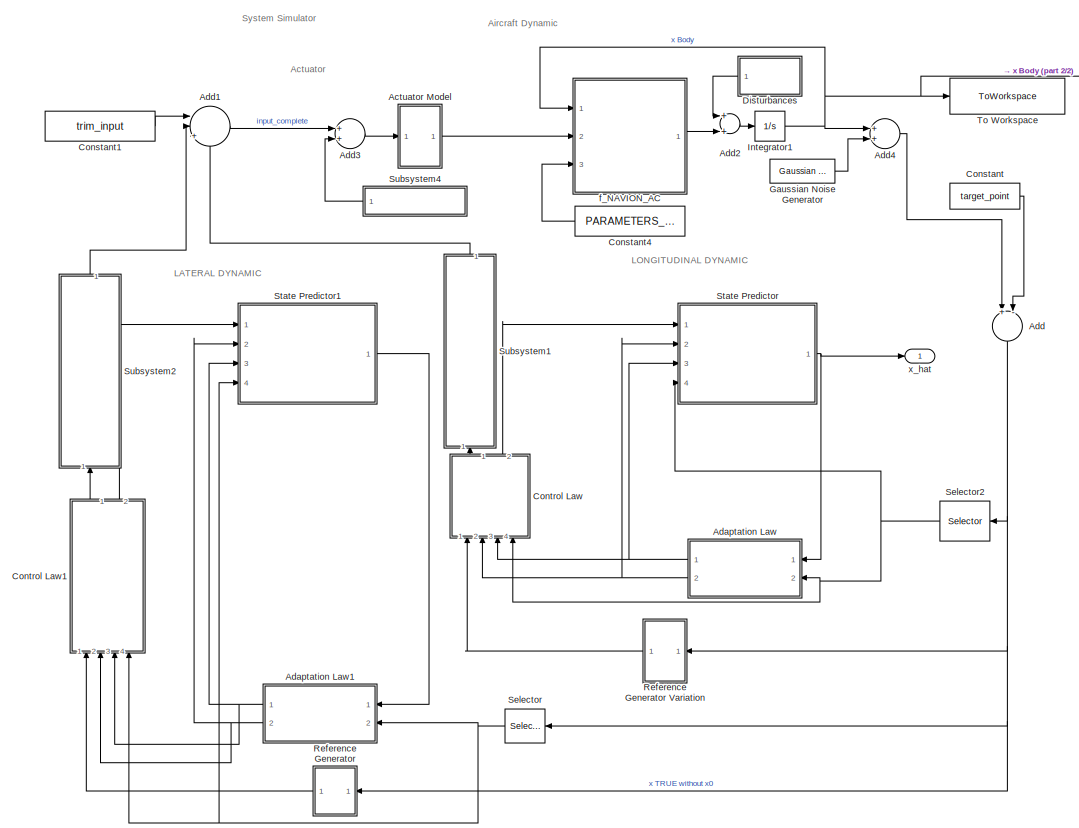
[diagram: root canvas - part 1/2, center side, full height]
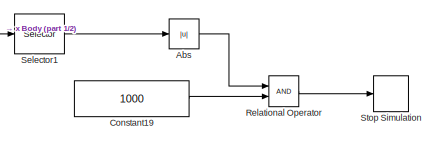
[diagram: root canvas - part 2/2, top right region]
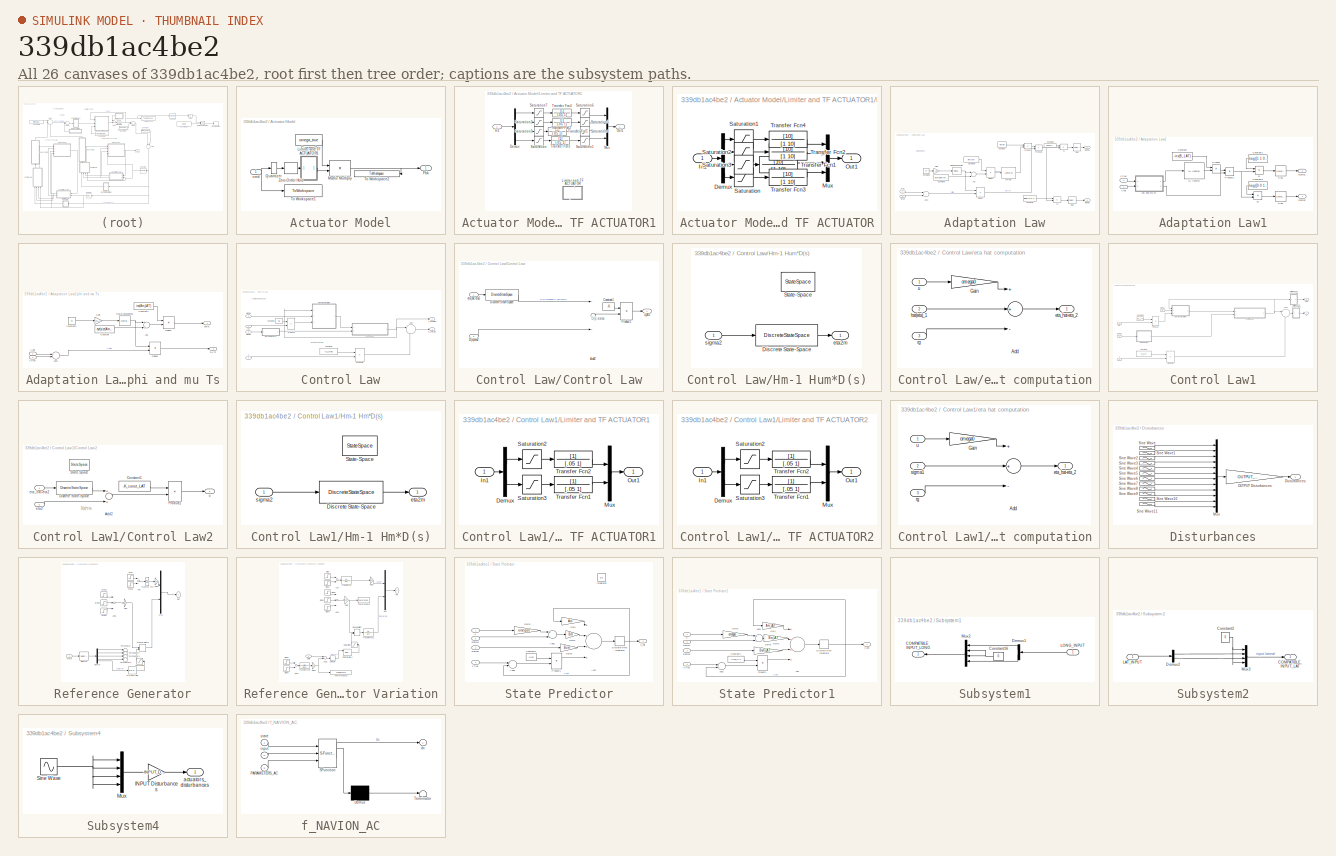
[diagram: thumbnail index - all 26 canvases of the model, root first then tree order]
MODEL slx_339db1ac4be2
KIND model
CONFIG AbsTol = auto
CONFIG EnableMultiTasking = off
CONFIG FixedStep = Ts/10
CONFIG MaxStep = auto
CONFIG MinStep = auto
CONFIG RelTol = 1e-3
CONFIG SampleTimeConstraint = Unconstrained
CONFIG Solver = ode4
CONFIG SolverName = ode4
CONFIG StartTime = 0.0
CONFIG StopTime = 200
BLOCK [Abs] Abs
  SaturateOnIntegerOverflow = off
BLOCK [SubSystem] Actuator Model
  Ports = [1, 1]
  RequestExecContextInheritance = off
  Variant = off
BLOCK [Constant] Actuator Model/Constant2
  Value = omega_true
BLOCK [Outport] Actuator Model/Fbk
  IconDisplay = Port number
BLOCK [SubSystem] Actuator Model/Limiter and TF ACTUATOR1
  Ports = [1, 1]
  RequestExecContextInheritance = off
  Variant = off
BLOCK [Demux] Actuator Model/Limiter and TF ACTUATOR1/Demux
  DisplayOption = bar
  Ports = [1, 4]
BLOCK [Inport] Actuator Model/Limiter and TF ACTUATOR1/In1
  IconDisplay = Port number
BLOCK [SubSystem] Actuator Model/Limiter and TF ACTUATOR1/Limiter and TF ACTUATOR
  Ports = [1, 1]
  RequestExecContextInheritance = off
  Variant = off
BLOCK [Demux] Actuator Model/Limiter and TF ACTUATOR1/Limiter and TF ACTUATOR/Demux
  DisplayOption = bar
  Ports = [1, 4]
BLOCK [Inport] Actuator Model/Limiter and TF ACTUATOR1/Limiter and TF ACTUATOR/In1
  IconDisplay = Port number
BLOCK [Mux] Actuator Model/Limiter and TF ACTUATOR1/Limiter and TF ACTUATOR/Mux
  DisplayOption = bar
  Ports = [4, 1]
BLOCK [Outport] Actuator Model/Limiter and TF ACTUATOR1/Limiter and TF ACTUATOR/Out1
  IconDisplay = Port number
BLOCK [Saturate] Actuator Model/Limiter and TF ACTUATOR1/Limiter and TF ACTUATOR/Saturation
  InputPortMap = u0
  LowerLimit = 0
  Ports = [1, 1]
  UpperLimit = 1
BLOCK [Saturate] Actuator Model/Limiter and TF ACTUATOR1/Limiter and TF ACTUATOR/Saturation1
  InputPortMap = u0
  LowerLimit = -0.3
  Ports = [1, 1]
  UpperLimit = 0.3
BLOCK [Saturate] Actuator Model/Limiter and TF ACTUATOR1/Limiter and TF ACTUATOR/Saturation2
  InputPortMap = u0
  LowerLimit = -0.3
  Ports = [1, 1]
  UpperLimit = 0.3
BLOCK [Saturate] Actuator Model/Limiter and TF ACTUATOR1/Limiter and TF ACTUATOR/Saturation3
  InputPortMap = u0
  LowerLimit = -0.3
  Ports = [1, 1]
  UpperLimit = 0.3
BLOCK [TransferFcn] Actuator Model/Limiter and TF ACTUATOR1/Limiter and TF ACTUATOR/Transfer Fcn1
  Denominator = [1 10]
  Numerator = [10]
BLOCK [TransferFcn] Actuator Model/Limiter and TF ACTUATOR1/Limiter and TF ACTUATOR/Transfer Fcn2
  Denominator = [1 10]
  Numerator = [10]
BLOCK [TransferFcn] Actuator Model/Limiter and TF ACTUATOR1/Limiter and TF ACTUATOR/Transfer Fcn3
  Denominator = [1 10]
  Numerator = [10]
BLOCK [TransferFcn] Actuator Model/Limiter and TF ACTUATOR1/Limiter and TF ACTUATOR/Transfer Fcn4
  Denominator = [1 10]
  Numerator = [10]
BLOCK [Mux] Actuator Model/Limiter and TF ACTUATOR1/Mux
  DisplayOption = bar
  Ports = [4, 1]
BLOCK [Outport] Actuator Model/Limiter and TF ACTUATOR1/Out1
  IconDisplay = Port number
BLOCK [Saturate] Actuator Model/Limiter and TF ACTUATOR1/Saturation
  InputPortMap = u0
  LowerLimit = 0
  Ports = [1, 1]
  UpperLimit = 1
BLOCK [Saturate] Actuator Model/Limiter and TF ACTUATOR1/Saturation1
  InputPortMap = u0
  LowerLimit = 0
  Ports = [1, 1]
  UpperLimit = 1
BLOCK [Saturate] Actuator Model/Limiter and TF ACTUATOR1/Saturation2
  InputPortMap = u0
  LowerLimit = -0.3
  Ports = [1, 1]
  UpperLimit = 0.3
BLOCK [Saturate] Actuator Model/Limiter and TF ACTUATOR1/Saturation3
  InputPortMap = u0
  LowerLimit = -0.3
  Ports = [1, 1]
  UpperLimit = 0.3
BLOCK [Saturate] Actuator Model/Limiter and TF ACTUATOR1/Saturation4
  InputPortMap = u0
  LowerLimit = -0.3
  Ports = [1, 1]
  UpperLimit = 0.3
BLOCK [Saturate] Actuator Model/Limiter and TF ACTUATOR1/Saturation5
  InputPortMap = u0
  LowerLimit = -0.3
  Ports = [1, 1]
  UpperLimit = 0.3
BLOCK [Saturate] Actuator Model/Limiter and TF ACTUATOR1/Saturation6
  InputPortMap = u0
  LowerLimit = -20/60
  Ports = [1, 1]
  UpperLimit = 20/60
BLOCK [Saturate] Actuator Model/Limiter and TF ACTUATOR1/Saturation7
  InputPortMap = u0
  LowerLimit = -20/60
  Ports = [1, 1]
  UpperLimit = 20/60
BLOCK [TransferFcn] Actuator Model/Limiter and TF ACTUATOR1/Transfer Fcn1
  Denominator = [.05 1]
BLOCK [TransferFcn] Actuator Model/Limiter and TF ACTUATOR1/Transfer Fcn2
  Denominator = [.05 1]
BLOCK [TransferFcn] Actuator Model/Limiter and TF ACTUATOR1/Transfer Fcn3
  Denominator = [.05 1]
BLOCK [TransferFcn] Actuator Model/Limiter and TF ACTUATOR1/Transfer Fcn4
  Denominator = [.05 1]
BLOCK [Product] Actuator Model/Matrix Multiply
  InputSameDT = off
  Multiplication = Matrix(*)
  OutDataTypeStr = Inherit: Inherit via internal rule
  Ports = [2, 1]
  RndMeth = Floor
  SaturateOnIntegerOverflow = off
BLOCK [Quantizer] Actuator Model/Quantizer
  QuantizationInterval = 1/(2^16-1)
BLOCK [ToWorkspace] Actuator Model/To Workspace1
  FixptAsFi = on
  MaxDataPoints = inf
  Ports = [1]
  SampleTime = -1
  Save2DSignal = 3-D array (concatenate along third dimension)
  SaveFormat = Timeseries
  VariableName = INPUT_TO_ACTUATOR
BLOCK [ToWorkspace] Actuator Model/To Workspace2
  FixptAsFi = on
  MaxDataPoints = inf
  Ports = [1]
  SampleTime = -1
  Save2DSignal = 3-D array (concatenate along third dimension)
  SaveFormat = Timeseries
  VariableName = ACTUATOR_TRUE
BLOCK [ZeroOrderHold] Actuator Model/Zero-Order Hold
  SampleTime = Ts_delay
BLOCK [Inport] Actuator Model/cmd
  IconDisplay = Port number
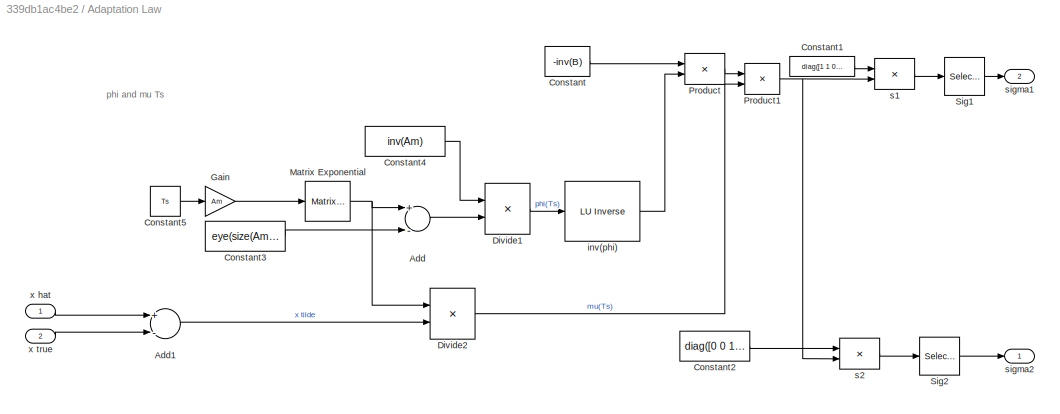
BLOCK [SubSystem] Adaptation Law
  Ports = [2, 2]
  RequestExecContextInheritance = off
  Variant = off
BLOCK [Sum] Adaptation Law/Add
  InputSameDT = off
  Inputs = +-
  OutDataTypeStr = Inherit: Inherit via internal rule
  Ports = [2, 1]
  SaturateOnIntegerOverflow = off
BLOCK [Sum] Adaptation Law/Add1
  InputSameDT = off
  Inputs = +-
  OutDataTypeStr = Inherit: Inherit via internal rule
  Ports = [2, 1]
  SaturateOnIntegerOverflow = off
BLOCK [Constant] Adaptation Law/Constant
  Value = -inv(B)
BLOCK [Constant] Adaptation Law/Constant1
  Value = diag([1 1 0 0 ])
BLOCK [Constant] Adaptation Law/Constant2
  Value = diag([0 0 1 1])
BLOCK [Constant] Adaptation Law/Constant3
  Value = eye(size(Am))
BLOCK [Constant] Adaptation Law/Constant4
  Value = inv(Am)
BLOCK [Constant] Adaptation Law/Constant5
  Value = Ts
BLOCK [Product] Adaptation Law/Divide1
  InputSameDT = off
  Inputs = **
  Multiplication = Matrix(*)
  OutDataTypeStr = Inherit: Inherit via internal rule
  Ports = [2, 1]
  RndMeth = Floor
  SaturateOnIntegerOverflow = off
BLOCK [Product] Adaptation Law/Divide2
  InputSameDT = off
  Inputs = **
  Multiplication = Matrix(*)
  OutDataTypeStr = Inherit: Inherit via internal rule
  Ports = [2, 1]
  RndMeth = Floor
  SaturateOnIntegerOverflow = off
BLOCK [Gain] Adaptation Law/Gain
  Gain = Am
  OutDataTypeStr = Inherit: Inherit via internal rule
  ParamDataTypeStr = Inherit: Inherit via internal rule
  SaturateOnIntegerOverflow = off
BLOCK [Reference] Adaptation Law/Matrix Exponential  REF=dspmtrx3/Matrix
Exponential
  Ports = [1, 1]
  SourceBlock = dspmtrx3/Matrix\nExponential
  SourceProductBaseCode = DS
  SourceProductName = DSP System Toolbox
  SourceType = Matrix Exponential
BLOCK [Product] Adaptation Law/Product
  InputSameDT = off
  Multiplication = Matrix(*)
  OutDataTypeStr = Inherit: Inherit via internal rule
  Ports = [2, 1]
  RndMeth = Floor
  SaturateOnIntegerOverflow = off
BLOCK [Product] Adaptation Law/Product1
  InputSameDT = off
  Multiplication = Matrix(*)
  OutDataTypeStr = Inherit: Inherit via internal rule
  Ports = [2, 1]
  RndMeth = Floor
  SaturateOnIntegerOverflow = off
BLOCK [Selector] Adaptation Law/Sig1
  IndexOptions = Index vector (dialog)
  Indices = [1 2]
  InputPortWidth = 4
  OutputSizes = 1
  Ports = [1, 1]
BLOCK [Selector] Adaptation Law/Sig2
  IndexOptions = Index vector (dialog)
  Indices = [3 4]
  InputPortWidth = 4
  OutputSizes = 1
  Ports = [1, 1]
BLOCK [Reference] Adaptation Law/inv(phi)  REF=dspinverses/ LU Inverse
  Ports = [1, 1]
  SourceBlock = dspinverses/ LU Inverse
  SourceProductBaseCode = DS
  SourceProductName = DSP System Toolbox
  SourceType = LU Inverse
BLOCK [Product] Adaptation Law/s1
  InputSameDT = off
  Multiplication = Matrix(*)
  OutDataTypeStr = Inherit: Inherit via internal rule
  Ports = [2, 1]
  RndMeth = Floor
  SaturateOnIntegerOverflow = off
BLOCK [Product] Adaptation Law/s2
  InputSameDT = off
  Multiplication = Matrix(*)
  OutDataTypeStr = Inherit: Inherit via internal rule
  Ports = [2, 1]
  RndMeth = Floor
  SaturateOnIntegerOverflow = off
BLOCK [Outport] Adaptation Law/sigma1
  IconDisplay = Port number
  Port = 2
BLOCK [Outport] Adaptation Law/sigma2
  IconDisplay = Port number
BLOCK [Inport] Adaptation Law/x hat
  IconDisplay = Port number
BLOCK [Inport] Adaptation Law/x true
  IconDisplay = Port number
  Port = 2
BLOCK [SubSystem] Adaptation Law1
  Ports = [2, 2]
  RequestExecContextInheritance = off
  Variant = off
BLOCK [Reference] Adaptation Law1/ LU Inverse  REF=dspinverses/ LU Inverse
  Ports = [1, 1]
  SourceBlock = dspinverses/ LU Inverse
  SourceProductBaseCode = DS
  SourceProductName = DSP System Toolbox
  SourceType = LU Inverse
BLOCK [Constant] Adaptation Law1/Constant
  Value = -inv(B_LAT)
BLOCK [Constant] Adaptation Law1/Constant1
  Value = diag([1 1 0 0])
BLOCK [Constant] Adaptation Law1/Constant2
  Value = diag([0 0 1 1])
BLOCK [Product] Adaptation Law1/Product
  InputSameDT = off
  Multiplication = Matrix(*)
  OutDataTypeStr = Inherit: Inherit via internal rule
  Ports = [2, 1]
  RndMeth = Floor
  SaturateOnIntegerOverflow = off
BLOCK [Product] Adaptation Law1/Product1
  InputSameDT = off
  Multiplication = Matrix(*)
  OutDataTypeStr = Inherit: Inherit via internal rule
  Ports = [2, 1]
  RndMeth = Floor
  SaturateOnIntegerOverflow = off
BLOCK [Selector] Adaptation Law1/Sig1
  IndexOptions = Index vector (dialog)
  Indices = [1 2]
  InputPortWidth = 4
  OutputSizes = 1
  Ports = [1, 1]
BLOCK [Selector] Adaptation Law1/Sig2
  IndexOptions = Index vector (dialog)
  Indices = [3 4]
  InputPortWidth = 4
  OutputSizes = 1
  Ports = [1, 1]
BLOCK [SubSystem] Adaptation Law1/phi and mu Ts
  Ports = [2, 2]
  RequestExecContextInheritance = off
  Variant = off
BLOCK [Sum] Adaptation Law1/phi and mu Ts/Add
  InputSameDT = off
  Inputs = +-
  OutDataTypeStr = Inherit: Inherit via internal rule
  Ports = [2, 1]
  SaturateOnIntegerOverflow = off
BLOCK [Sum] Adaptation Law1/phi and mu Ts/Add1
  InputSameDT = off
  Inputs = +-
  OutDataTypeStr = Inherit: Inherit via internal rule
  Ports = [2, 1]
  SaturateOnIntegerOverflow = off
BLOCK [Constant] Adaptation Law1/phi and mu Ts/Constant
  Value = eye(size(Am_LAT))
BLOCK [Constant] Adaptation Law1/phi and mu Ts/Constant1
  Value = inv(Am_LAT)
BLOCK [Constant] Adaptation Law1/phi and mu Ts/Constant2
  Value = Ts
BLOCK [Product] Adaptation Law1/phi and mu Ts/Divide1
  InputSameDT = off
  Inputs = **
  Multiplication = Matrix(*)
  OutDataTypeStr = Inherit: Inherit via internal rule
  Ports = [2, 1]
  RndMeth = Floor
  SaturateOnIntegerOverflow = off
BLOCK [Product] Adaptation Law1/phi and mu Ts/Divide2
  InputSameDT = off
  Inputs = **
  Multiplication = Matrix(*)
  OutDataTypeStr = Inherit: Inherit via internal rule
  Ports = [2, 1]
  RndMeth = Floor
  SaturateOnIntegerOverflow = off
BLOCK [Gain] Adaptation Law1/phi and mu Ts/Gain
  Gain = Am_LAT
  OutDataTypeStr = Inherit: Inherit via internal rule
  ParamDataTypeStr = Inherit: Inherit via internal rule
  SaturateOnIntegerOverflow = off
BLOCK [Reference] Adaptation Law1/phi and mu Ts/Matrix Exponential  REF=dspmtrx3/Matrix
Exponential
  Ports = [1, 1]
  SourceBlock = dspmtrx3/Matrix\nExponential
  SourceProductBaseCode = DS
  SourceProductName = DSP System Toolbox
  SourceType = Matrix Exponential
BLOCK [Outport] Adaptation Law1/phi and mu Ts/mu Ts
  IconDisplay = Port number
  Port = 2
BLOCK [Outport] Adaptation Law1/phi and mu Ts/phi Ts
  IconDisplay = Port number
BLOCK [Inport] Adaptation Law1/phi and mu Ts/x hat
  IconDisplay = Port number
  Port = 2
BLOCK [Inport] Adaptation Law1/phi and mu Ts/x true
  IconDisplay = Port number
BLOCK [Product] Adaptation Law1/s1
  InputSameDT = off
  Multiplication = Matrix(*)
  OutDataTypeStr = Inherit: Inherit via internal rule
  Ports = [2, 1]
  RndMeth = Floor
  SaturateOnIntegerOverflow = off
BLOCK [Product] Adaptation Law1/s2
  InputSameDT = off
  Multiplication = Matrix(*)
  OutDataTypeStr = Inherit: Inherit via internal rule
  Ports = [2, 1]
  RndMeth = Floor
  SaturateOnIntegerOverflow = off
BLOCK [Outport] Adaptation Law1/sigma1
  IconDisplay = Port number
  Port = 2
BLOCK [Outport] Adaptation Law1/sigma2
  IconDisplay = Port number
BLOCK [Inport] Adaptation Law1/x hat
  IconDisplay = Port number
BLOCK [Inport] Adaptation Law1/x true
  IconDisplay = Port number
  Port = 2
BLOCK [Sum] Add
  InputSameDT = off
  Inputs = +-
  OutDataTypeStr = Inherit: Inherit via internal rule
  Ports = [2, 1]
  SaturateOnIntegerOverflow = off
BLOCK [Sum] Add1
  IconShape = round
  InputSameDT = off
  Inputs = ||+++
  OutDataTypeStr = Inherit: Inherit via internal rule
  Ports = [3, 1]
  SaturateOnIntegerOverflow = off
BLOCK [Sum] Add2
  InputSameDT = off
  OutDataTypeStr = Inherit: Inherit via internal rule
  Ports = [2, 1]
  SaturateOnIntegerOverflow = off
BLOCK [Sum] Add3
  InputSameDT = off
  OutDataTypeStr = Inherit: Inherit via internal rule
  Ports = [2, 1]
  SaturateOnIntegerOverflow = off
BLOCK [Sum] Add4
  InputSameDT = off
  OutDataTypeStr = Inherit: Inherit via internal rule
  Ports = [2, 1]
  SaturateOnIntegerOverflow = off
BLOCK [Constant] Constant
  Value = target_point
BLOCK [Constant] Constant1
  Value = trim_input
BLOCK [Constant] Constant19
  Value = 1000
BLOCK [Constant] Constant4
  Value = PARAMETERS_AC
BLOCK [SubSystem] Control Law
  Ports = [4, 2]
  RequestExecContextInheritance = off
  Variant = off
BLOCK [Sum] Control Law/Add3
  IconShape = round
  InputSameDT = off
  Inputs = |++
  OutDataTypeStr = Inherit: Inherit via internal rule
  Ports = [2, 1]
  SaturateOnIntegerOverflow = off
BLOCK [Constant] Control Law/Constant1
  Value = Kg
BLOCK [Constant] Control Law/Constant4
  Value = -K_LONG
BLOCK [SubSystem] Control Law/Control Law
  Ports = [2, 1]
  RequestExecContextInheritance = off
  Variant = off
BLOCK [Sum] Control Law/Control Law/Add2
  InputSameDT = off
  OutDataTypeStr = Inherit: Inherit via internal rule
  Ports = [2, 1]
  SaturateOnIntegerOverflow = off
BLOCK [Constant] Control Law/Control Law/Constant1
  Value = -K
BLOCK [Inport] Control Law/Control Law/D(s)eta2
  IconDisplay = Port number
  Port = 2
BLOCK [DiscreteStateSpace] Control Law/Control Law/Discrete State-Space
  A = DiscreteD_Longitudinal.A
  B = DiscreteD_Longitudinal.B
  C = DiscreteD_Longitudinal.C
  D = DiscreteD_Longitudinal.D
  SampleTime = Ts
BLOCK [Product] Control Law/Control Law/Product1
  InputSameDT = off
  Multiplication = Matrix(*)
  OutDataTypeStr = Inherit: Inherit via internal rule
  Ports = [2, 1]
  SaturateOnIntegerOverflow = off
BLOCK [Inport] Control Law/Control Law/eta_hat-eta2
  IconDisplay = Port number
BLOCK [Outport] Control Law/Control Law/u_AD
  IconDisplay = Port number
BLOCK [SubSystem] Control Law/Hm-1 Hum*D(s)
  Ports = [1, 1]
  RequestExecContextInheritance = off
  Variant = off
BLOCK [DiscreteStateSpace] Control Law/Hm-1 Hum*D(s)/Discrete State-Space
  A = DiscretesistemaLongitudinal.A
  B = DiscretesistemaLongitudinal.B
  C = DiscretesistemaLongitudinal.C
  D = DiscretesistemaLongitudinal.D
  SampleTime = Ts
BLOCK [StateSpace] Control Law/Hm-1 Hum*D(s)/State-Space
  A = sistemaLongitudinal.A
  B = sistemaLongitudinal.B
  C = sistemaLongitudinal.C
  D = sistemaLongitudinal.D
  Ports = [1, 1]
  X0 = 0
BLOCK [Outport] Control Law/Hm-1 Hum*D(s)/eta2m
  IconDisplay = Port number
BLOCK [Inport] Control Law/Hm-1 Hum*D(s)/sigma2
  IconDisplay = Port number
BLOCK [Product] Control Law/Product1
  InputSameDT = off
  Multiplication = Matrix(*)
  OutDataTypeStr = Inherit: Inherit via internal rule
  Ports = [2, 1]
  SaturateOnIntegerOverflow = off
BLOCK [Product] Control Law/Product6
  InputSameDT = off
  Multiplication = Matrix(*)
  OutDataTypeStr = Inherit: Inherit via internal rule
  Ports = [2, 1]
  SaturateOnIntegerOverflow = off
BLOCK [SubSystem] Control Law/eta hat computation
  Ports = [3, 1]
  RequestExecContextInheritance = off
  Variant = off
BLOCK [Sum] Control Law/eta hat computation/Add
  InputSameDT = off
  Inputs = ++-
  OutDataTypeStr = Inherit: Inherit via internal rule
  Ports = [3, 1]
  SaturateOnIntegerOverflow = off
BLOCK [Gain] Control Law/eta hat computation/Gain
  Gain = omega0
  Multiplication = Matrix(K*u)
  OutDataTypeStr = Inherit: Inherit via internal rule
  ParamDataTypeStr = Inherit: Inherit via internal rule
  SaturateOnIntegerOverflow = off
BLOCK [Outport] Control Law/eta hat computation/eta_hat-eta_2
  IconDisplay = Port number
BLOCK [Inport] Control Law/eta hat computation/hat(eta)_1
  IconDisplay = Port number
  Port = 2
BLOCK [Inport] Control Law/eta hat computation/rg
  IconDisplay = Port number
  Port = 3
  PortDimensions = 2
BLOCK [Inport] Control Law/eta hat computation/u
  IconDisplay = Port number
BLOCK [Inport] Control Law/ref
  IconDisplay = Port number
BLOCK [Inport] Control Law/sigma1
  IconDisplay = Port number
  Port = 2
BLOCK [Inport] Control Law/sigma2
  IconDisplay = Port number
  Port = 3
BLOCK [Outport] Control Law/u_adaptive
  IconDisplay = Port number
  Port = 2
BLOCK [Outport] Control Law/u_cmd_tot
  IconDisplay = Port number
BLOCK [Inport] Control Law/x
  IconDisplay = Port number
  Port = 4
BLOCK [SubSystem] Control Law1
  Ports = [4, 2]
  RequestExecContextInheritance = off
  Variant = off
BLOCK [Sum] Control Law1/Add3
  IconShape = round
  InputSameDT = off
  Inputs = |++
  OutDataTypeStr = Inherit: Inherit via internal rule
  Ports = [2, 1]
  SaturateOnIntegerOverflow = off
BLOCK [Constant] Control Law1/Constant1
  Value = Kg_LAT
BLOCK [Constant] Control Law1/Constant4
  Value = -K_LAT
BLOCK [SubSystem] Control Law1/Control Law2
  Ports = [2, 1]
  RequestExecContextInheritance = off
  Variant = off
BLOCK [Sum] Control Law1/Control Law2/Add2
  InputSameDT = off
  OutDataTypeStr = Inherit: Inherit via internal rule
  Ports = [2, 1]
  SaturateOnIntegerOverflow = off
BLOCK [Constant] Control Law1/Control Law2/Constant1
  Value = -K_const_LAT
BLOCK [DiscreteStateSpace] Control Law1/Control Law2/Discrete State-Space
  A = DiscreteD_Lateral.A
  B = DiscreteD_Lateral.B
  C = DiscreteD_Lateral.C
  D = DiscreteD_Lateral.D
  SampleTime = Ts
BLOCK [Product] Control Law1/Control Law2/Product1
  InputSameDT = off
  Multiplication = Matrix(*)
  OutDataTypeStr = Inherit: Inherit via internal rule
  Ports = [2, 1]
  SaturateOnIntegerOverflow = off
BLOCK [StateSpace] Control Law1/Control Law2/State-Space
  A = D_Longitudinal.A
  B = D_Longitudinal.B
  C = D_Longitudinal.C
  D = D_Longitudinal.D
  Ports = [1, 1]
  X0 = 0
BLOCK [Inport] Control Law1/Control Law2/eta2
  IconDisplay = Port number
  Port = 2
BLOCK [Inport] Control Law1/Control Law2/eta_hat-eta2
  IconDisplay = Port number
BLOCK [Outport] Control Law1/Control Law2/u
  IconDisplay = Port number
BLOCK [SubSystem] Control Law1/Hm-1 Hm*D(s)
  Ports = [1, 1]
  RequestExecContextInheritance = off
  Variant = off
BLOCK [DiscreteStateSpace] Control Law1/Hm-1 Hm*D(s)/Discrete State-Space
  A = DiscretesistemaLateral.A
  B = DiscretesistemaLateral.B
  C = DiscretesistemaLateral.C
  D = DiscretesistemaLateral.D
  SampleTime = Ts
BLOCK [StateSpace] Control Law1/Hm-1 Hm*D(s)/State-Space
  A = sistemaLateral.A
  B = sistemaLateral.B
  C = sistemaLateral.C
  D = sistemaLateral.D
  Ports = [1, 1]
  X0 = 0
BLOCK [Outport] Control Law1/Hm-1 Hm*D(s)/eta2m
  IconDisplay = Port number
BLOCK [Inport] Control Law1/Hm-1 Hm*D(s)/sigma2
  IconDisplay = Port number
BLOCK [SubSystem] Control Law1/Limiter and TF ACTUATOR1
  Ports = [1, 1]
  RequestExecContextInheritance = off
  Variant = off
BLOCK [Demux] Control Law1/Limiter and TF ACTUATOR1/Demux
  DisplayOption = bar
  Outputs = 2
  Ports = [1, 2]
BLOCK [Inport] Control Law1/Limiter and TF ACTUATOR1/In1
  IconDisplay = Port number
BLOCK [Mux] Control Law1/Limiter and TF ACTUATOR1/Mux
  DisplayOption = bar
  Inputs = 2
  Ports = [2, 1]
BLOCK [Outport] Control Law1/Limiter and TF ACTUATOR1/Out1
  IconDisplay = Port number
BLOCK [Saturate] Control Law1/Limiter and TF ACTUATOR1/Saturation2
  InputPortMap = u0
  LowerLimit = -0.3
  Ports = [1, 1]
  UpperLimit = 0.3
BLOCK [Saturate] Control Law1/Limiter and TF ACTUATOR1/Saturation3
  InputPortMap = u0
  LowerLimit = -0.3
  Ports = [1, 1]
  UpperLimit = 0.3
BLOCK [TransferFcn] Control Law1/Limiter and TF ACTUATOR1/Transfer Fcn1
  Denominator = [.05 1]
BLOCK [TransferFcn] Control Law1/Limiter and TF ACTUATOR1/Transfer Fcn2
  Denominator = [.05 1]
BLOCK [SubSystem] Control Law1/Limiter and TF ACTUATOR2
  Ports = [1, 1]
  RequestExecContextInheritance = off
  Variant = off
BLOCK [Demux] Control Law1/Limiter and TF ACTUATOR2/Demux
  DisplayOption = bar
  Outputs = 2
  Ports = [1, 2]
BLOCK [Inport] Control Law1/Limiter and TF ACTUATOR2/In1
  IconDisplay = Port number
BLOCK [Mux] Control Law1/Limiter and TF ACTUATOR2/Mux
  DisplayOption = bar
  Inputs = 2
  Ports = [2, 1]
BLOCK [Outport] Control Law1/Limiter and TF ACTUATOR2/Out1
  IconDisplay = Port number
BLOCK [Saturate] Control Law1/Limiter and TF ACTUATOR2/Saturation2
  InputPortMap = u0
  LowerLimit = -0.3
  Ports = [1, 1]
  UpperLimit = 0.3
BLOCK [Saturate] Control Law1/Limiter and TF ACTUATOR2/Saturation3
  InputPortMap = u0
  LowerLimit = -0.3
  Ports = [1, 1]
  UpperLimit = 0.3
BLOCK [TransferFcn] Control Law1/Limiter and TF ACTUATOR2/Transfer Fcn1
  Denominator = [.05 1]
BLOCK [TransferFcn] Control Law1/Limiter and TF ACTUATOR2/Transfer Fcn2
  Denominator = [.05 1]
BLOCK [Product] Control Law1/Product1
  InputSameDT = off
  Multiplication = Matrix(*)
  OutDataTypeStr = Inherit: Inherit via internal rule
  Ports = [2, 1]
  SaturateOnIntegerOverflow = off
BLOCK [Product] Control Law1/Product6
  InputSameDT = off
  Multiplication = Matrix(*)
  OutDataTypeStr = Inherit: Inherit via internal rule
  Ports = [2, 1]
  SaturateOnIntegerOverflow = off
BLOCK [SubSystem] Control Law1/eta hat computation
  Ports = [3, 1]
  RequestExecContextInheritance = off
  Variant = off
BLOCK [Sum] Control Law1/eta hat computation/Add
  InputSameDT = off
  Inputs = ++-
  OutDataTypeStr = Inherit: Inherit via internal rule
  Ports = [3, 1]
  SaturateOnIntegerOverflow = off
BLOCK [Gain] Control Law1/eta hat computation/Gain
  Gain = omega0
  Multiplication = Matrix(K*u)
  OutDataTypeStr = Inherit: Inherit via internal rule
  ParamDataTypeStr = Inherit: Inherit via internal rule
  SaturateOnIntegerOverflow = off
BLOCK [Outport] Control Law1/eta hat computation/eta_hat-eta_2
  IconDisplay = Port number
BLOCK [Inport] Control Law1/eta hat computation/rg
  IconDisplay = Port number
  Port = 3
  PortDimensions = 2
BLOCK [Inport] Control Law1/eta hat computation/sigma1
  IconDisplay = Port number
  Port = 2
BLOCK [Inport] Control Law1/eta hat computation/u
  IconDisplay = Port number
BLOCK [Inport] Control Law1/ref
  IconDisplay = Port number
BLOCK [Inport] Control Law1/sigma1
  IconDisplay = Port number
  Port = 2
BLOCK [Inport] Control Law1/sigma2
  IconDisplay = Port number
  Port = 3
BLOCK [Outport] Control Law1/u
  IconDisplay = Port number
BLOCK [Outport] Control Law1/u ad
  IconDisplay = Port number
  Port = 2
BLOCK [Inport] Control Law1/x
  IconDisplay = Port number
  Port = 4
BLOCK [SubSystem] Disturbances
  Ports = [0, 1]
  RequestExecContextInheritance = off
  Variant = off
BLOCK [Outport] Disturbances/Disturbances
  IconDisplay = Port number
BLOCK [Mux] Disturbances/Mux
  DisplayOption = bar
  Inputs = 12
  Ports = [12, 1]
BLOCK [Gain] Disturbances/OUTPUT Disturbances
  Gain = OUTPUT_DISTURBANCE
  OutDataTypeStr = Inherit: Inherit via internal rule
  ParamDataTypeStr = Inherit: Inherit via internal rule
  SaturateOnIntegerOverflow = off
BLOCK [Sin] Disturbances/Sine Wave
  Amplitude = 0.1
  Frequency = 3
  Ports = [0, 1]
  SampleTime = 0
BLOCK [Sin] Disturbances/Sine Wave1
  Amplitude = 0.2
  Bias = 0.1
  Frequency = 3
  Ports = [0, 1]
  SampleTime = 0
BLOCK [Sin] Disturbances/Sine Wave10
  Amplitude = 0.5
  Frequency = 3
  Ports = [0, 1]
  SampleTime = 0
BLOCK [Sin] Disturbances/Sine Wave11
  Amplitude = 0.8
  Bias = 2
  Frequency = 3
  Ports = [0, 1]
  SampleTime = 0
BLOCK [Sin] Disturbances/Sine Wave2
  Amplitude = 0.1
  Frequency = 0.5
  Ports = [0, 1]
  SampleTime = 0
BLOCK [Sin] Disturbances/Sine Wave3
  Amplitude = 0.1
  Ports = [0, 1]
  SampleTime = 0
BLOCK [Sin] Disturbances/Sine Wave4
  Frequency = 3
  Ports = [0, 1]
  SampleTime = 0
BLOCK [Sin] Disturbances/Sine Wave5
  Amplitude = 0.25
  Frequency = 3
  Ports = [0, 1]
  SampleTime = 0
BLOCK [Sin] Disturbances/Sine Wave6
  Amplitude = 0.2
  Frequency = 6
  Ports = [0, 1]
  SampleTime = 0
BLOCK [Sin] Disturbances/Sine Wave7
  Amplitude = 0.2
  Frequency = 3
  Ports = [0, 1]
  SampleTime = 0
BLOCK [Sin] Disturbances/Sine Wave8
  Amplitude = 0.5
  Frequency = 3
  Ports = [0, 1]
  SampleTime = 0
BLOCK [Sin] Disturbances/Sine Wave9
  Amplitude = 0.5
  Frequency = 3
  Ports = [0, 1]
  SampleTime = 0
BLOCK [Reference] Gaussian Noise Generator  REF=commnoisgen2/Gaussian Noise
Generator
  Ports = [0, 1]
  SourceBlock = commnoisgen2/Gaussian Noise\nGenerator
  SourceType = Gaussian Noise Generator
BLOCK [Integrator] Integrator1
  InitialCondition = x0
  Ports = [1, 1]
BLOCK [SubSystem] Reference Generator
  Ports = [1, 1]
  RequestExecContextInheritance = off
  Variant = off
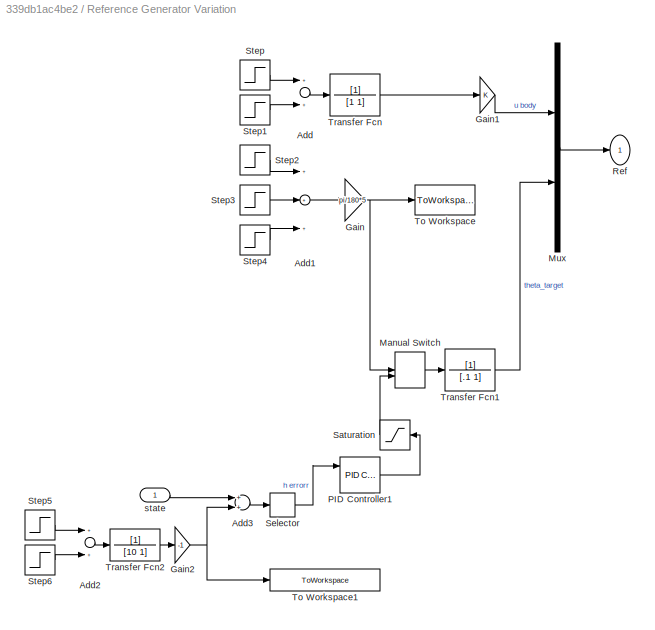
BLOCK [SubSystem] Reference Generator Variation
  Ports = [1, 1]
  RequestExecContextInheritance = off
  Variant = off
BLOCK [Sum] Reference Generator Variation/Add
  InputSameDT = off
  OutDataTypeStr = Inherit: Inherit via internal rule
  Ports = [2, 1]
  SaturateOnIntegerOverflow = off
BLOCK [Sum] Reference Generator Variation/Add1
  InputSameDT = off
  Inputs = +++
  OutDataTypeStr = Inherit: Inherit via internal rule
  Ports = [3, 1]
  SaturateOnIntegerOverflow = off
BLOCK [Sum] Reference Generator Variation/Add2
  InputSameDT = off
  OutDataTypeStr = Inherit: Inherit via internal rule
  Ports = [2, 1]
  SaturateOnIntegerOverflow = off
BLOCK [Sum] Reference Generator Variation/Add3
  InputSameDT = off
  OutDataTypeStr = Inherit: Inherit via internal rule
  Ports = [2, 1]
  SaturateOnIntegerOverflow = off
BLOCK [Gain] Reference Generator Variation/Gain
  Gain = pi/180*5
  OutDataTypeStr = Inherit: Inherit via internal rule
  ParamDataTypeStr = Inherit: Inherit via internal rule
  SaturateOnIntegerOverflow = off
BLOCK [Gain] Reference Generator Variation/Gain1
  OutDataTypeStr = Inherit: Inherit via internal rule
  ParamDataTypeStr = Inherit: Inherit via internal rule
  SaturateOnIntegerOverflow = off
BLOCK [Gain] Reference Generator Variation/Gain2
  Gain = -1
  OutDataTypeStr = Inherit: Inherit via internal rule
  ParamDataTypeStr = Inherit: Inherit via internal rule
  SaturateOnIntegerOverflow = off
BLOCK [ManualSwitch] Reference Generator Variation/Manual Switch
  CurrentSetting = 0
BLOCK [Mux] Reference Generator Variation/Mux
  DisplayOption = bar
  Inputs = 2
  Ports = [2, 1]
BLOCK [Reference] Reference Generator Variation/PID Controller1  REF=simulink/Continuous/PID Controller
  Ports = [3, 1]
  SourceBlock = simulink/Continuous/PID Controller
  SourceProductBaseCode = SL
  SourceProductName = Simulink
  SourceType = PID 1dof
BLOCK [Outport] Reference Generator Variation/Ref
  IconDisplay = Port number
BLOCK [Saturate] Reference Generator Variation/Saturation
  InputPortMap = u0
  LowerLimit = -100
  Ports = [1, 1]
  UpperLimit = 100
BLOCK [Selector] Reference Generator Variation/Selector
  IndexOptions = Index vector (dialog)
  Indices = [12]
  InputPortWidth = 12
  OutputSizes = 1
  Ports = [1, 1]
BLOCK [Step] Reference Generator Variation/Step
  After = 5
  SampleTime = 0
  Time = 100
BLOCK [Step] Reference Generator Variation/Step1
  After = 0
  SampleTime = 0
  Time = 120
BLOCK [Step] Reference Generator Variation/Step2
  SampleTime = 0
  Time = 25
BLOCK [Step] Reference Generator Variation/Step3
  After = -2
  SampleTime = 0
  Time = 7.5+50
BLOCK [Step] Reference Generator Variation/Step4
  After = +1
  SampleTime = 0
  Time = 15+50
BLOCK [Step] Reference Generator Variation/Step5
  After = 120
  SampleTime = 0
  Time = 30
BLOCK [Step] Reference Generator Variation/Step6
  After = -50
  SampleTime = 0
  Time = 100
BLOCK [ToWorkspace] Reference Generator Variation/To Workspace
  FixptAsFi = on
  MaxDataPoints = inf
  Ports = [1]
  SampleTime = -1
  Save2DSignal = 3-D array (concatenate along third dimension)
  SaveFormat = Timeseries
  VariableName = Reference_Altitude_NOMINAL
BLOCK [ToWorkspace] Reference Generator Variation/To Workspace1
  FixptAsFi = on
  MaxDataPoints = inf
  Ports = [1]
  SampleTime = -1
  Save2DSignal = 3-D array (concatenate along third dimension)
  SaveFormat = Timeseries
  VariableName = Reference_Altitude
BLOCK [TransferFcn] Reference Generator Variation/Transfer Fcn
  Denominator = [1 1]
BLOCK [TransferFcn] Reference Generator Variation/Transfer Fcn1
  Denominator = [.1 1]
BLOCK [TransferFcn] Reference Generator Variation/Transfer Fcn2
  Denominator = [10 1]
BLOCK [Inport] Reference Generator Variation/state
  IconDisplay = Port number
BLOCK [Sum] Reference Generator/Add
  InputSameDT = off
  OutDataTypeStr = Inherit: Inherit via internal rule
  Ports = [2, 1]
  SaturateOnIntegerOverflow = off
BLOCK [Sum] Reference Generator/Add1
  InputSameDT = off
  Inputs = +++
  OutDataTypeStr = Inherit: Inherit via internal rule
  Ports = [3, 1]
  SaturateOnIntegerOverflow = off
BLOCK [Demux] Reference Generator/Demux
  DisplayOption = bar
  Outputs = 5
  Ports = [1, 5]
BLOCK [Gain] Reference Generator/Gain
  Gain = pi/180*10
  OutDataTypeStr = Inherit: Inherit via internal rule
  ParamDataTypeStr = Inherit: Inherit via internal rule
  SaturateOnIntegerOverflow = off
BLOCK [Gain] Reference Generator/Gain1
  Gain = 0
  OutDataTypeStr = Inherit: Inherit via internal rule
  ParamDataTypeStr = Inherit: Inherit via internal rule
  SaturateOnIntegerOverflow = off
BLOCK [ManualSwitch] Reference Generator/Manual Switch
  CurrentSetting = 0
BLOCK [Mux] Reference Generator/Mux
  DisplayOption = bar
  Inputs = 2
  Ports = [2, 1]
BLOCK [Reference] Reference Generator/PID Controller  REF=simulink/Continuous/PID Controller
  Ports = [1, 1]
  SourceBlock = simulink/Continuous/PID Controller
  SourceProductBaseCode = SL
  SourceProductName = Simulink
  SourceType = PID 1dof
BLOCK [Outport] Reference Generator/Ref
  IconDisplay = Port number
BLOCK [Saturate] Reference Generator/Saturation
  InputPortMap = u0
  LowerLimit = -100
  Ports = [1, 1]
  UpperLimit = 100
BLOCK [Selector] Reference Generator/Selector
  IndexOptions = Index vector (dialog)
  Indices = [2 4 6 7 9]
  InputPortWidth = 12
  OutputSizes = 1
  Ports = [1, 1]
BLOCK [Step] Reference Generator/Step
  After = 4
  SampleTime = 0
  Time = 2
BLOCK [Step] Reference Generator/Step1
  After = -4
  SampleTime = 0
  Time = 20
BLOCK [Step] Reference Generator/Step2
  SampleTime = 0
  Time = 1.5
BLOCK [Step] Reference Generator/Step3
  After = -2
  SampleTime = 0
  Time = 7.5+25
BLOCK [Step] Reference Generator/Step4
  After = +1
  SampleTime = 0
  Time = 15+25+25
BLOCK [Terminator] Reference Generator/Terminator
BLOCK [Terminator] Reference Generator/Terminator1
BLOCK [Terminator] Reference Generator/Terminator2
BLOCK [Terminator] Reference Generator/Terminator3
BLOCK [TransferFcn] Reference Generator/Transfer Fcn
  Denominator = [1 1]
BLOCK [Inport] Reference Generator/state
  IconDisplay = Port number
BLOCK [RelationalOperator] Relational Operator
  InputSameDT = off
  Ports = [2, 1]
BLOCK [Selector] Selector
  IndexOptions = Index vector (dialog)
  Indices = [2 4 6 7]
  InputPortWidth = 12
  OutputSizes = 1
  Ports = [1, 1]
BLOCK [Selector] Selector1
  IndexOptions = Index vector (dialog)
  Indices = [1 2 3 4 5 6 7 8 9]
  InputPortWidth = 12
  OutputSizes = 1
  Ports = [1, 1]
BLOCK [Selector] Selector2
  IndexOptions = Index vector (dialog)
  Indices = [1 3 5 8]
  InputPortWidth = 12
  OutputSizes = 1
  Ports = [1, 1]
BLOCK [SubSystem] State Predictor
  Ports = [4, 1]
  RequestExecContextInheritance = off
  Variant = off
BLOCK [Sum] State Predictor/Add
  InputSameDT = off
  Inputs = ++++
  OutDataTypeStr = Inherit: Inherit via internal rule
  Ports = [4, 1]
  SaturateOnIntegerOverflow = off
BLOCK [Sum] State Predictor/Add1
  InputSameDT = off
  OutDataTypeStr = Inherit: Inherit via internal rule
  Ports = [2, 1]
  SaturateOnIntegerOverflow = off
BLOCK [Sum] State Predictor/Add2
  InputSameDT = off
  Inputs = -+
  OutDataTypeStr = Inherit: Inherit via internal rule
  Ports = [2, 1]
  SaturateOnIntegerOverflow = off
BLOCK [Constant] State Predictor/Constant1
  Value = -Ksp
BLOCK [DiscreteIntegrator] State Predictor/Discrete-Time Integrator
  ICPrevOutput = DiscIntNeverNeededParam
  ICPrevScaledInput = DiscIntNeverNeededParam
  InitialCondition = x0hat
  InitialConditionSetting = State (most efficient)
  Ports = [1, 1]
  SampleTime = -1
BLOCK [Gain] State Predictor/Gain
  Gain = Am
  Multiplication = Matrix(K*u)
  OutDataTypeStr = Inherit: Inherit via internal rule
  ParamDataTypeStr = Inherit: Inherit via internal rule
  SaturateOnIntegerOverflow = off
BLOCK [Gain] State Predictor/Gain1
  Gain = Bm
  Multiplication = Matrix(K*u)
  OutDataTypeStr = Inherit: Inherit via internal rule
  ParamDataTypeStr = Inherit: Inherit via internal rule
  SaturateOnIntegerOverflow = off
BLOCK [Gain] State Predictor/Gain2
  Gain = omega0
  Multiplication = Matrix(K*u)
  OutDataTypeStr = Inherit: Inherit via internal rule
  ParamDataTypeStr = Inherit: Inherit via internal rule
  SaturateOnIntegerOverflow = off
BLOCK [Gain] State Predictor/Gain3
  Gain = Bum
  Multiplication = Matrix(K*u)
  OutDataTypeStr = Inherit: Inherit via internal rule
  ParamDataTypeStr = Inherit: Inherit via internal rule
  SaturateOnIntegerOverflow = off
BLOCK [Integrator] State Predictor/Integrator
  InitialCondition = x0hat
  Ports = [1, 1]
BLOCK [Product] State Predictor/Product1
  InputSameDT = off
  Multiplication = Matrix(*)
  OutDataTypeStr = Inherit: Inherit via internal rule
  Ports = [2, 1]
  SaturateOnIntegerOverflow = off
BLOCK [Inport] State Predictor/sigma1
  IconDisplay = Port number
  Port = 2
BLOCK [Inport] State Predictor/sigma2
  IconDisplay = Port number
  Port = 3
BLOCK [Inport] State Predictor/u
  IconDisplay = Port number
BLOCK [Inport] State Predictor/x true
  IconDisplay = Port number
  Port = 4
BLOCK [Outport] State Predictor/x_hat
  IconDisplay = Port number
BLOCK [SubSystem] State Predictor1
  Ports = [4, 1]
  RequestExecContextInheritance = off
  Variant = off
BLOCK [Sum] State Predictor1/Add
  InputSameDT = off
  Inputs = ++++
  OutDataTypeStr = Inherit: Inherit via internal rule
  Ports = [4, 1]
  SaturateOnIntegerOverflow = off
BLOCK [Sum] State Predictor1/Add1
  InputSameDT = off
  OutDataTypeStr = Inherit: Inherit via internal rule
  Ports = [2, 1]
  SaturateOnIntegerOverflow = off
BLOCK [Sum] State Predictor1/Add2
  InputSameDT = off
  Inputs = -+
  OutDataTypeStr = Inherit: Inherit via internal rule
  Ports = [2, 1]
  SaturateOnIntegerOverflow = off
BLOCK [Constant] State Predictor1/Constant1
  Value = -Ksp_LAT
BLOCK [DiscreteIntegrator] State Predictor1/Discrete-Time Integrator
  ICPrevOutput = DiscIntNeverNeededParam
  ICPrevScaledInput = DiscIntNeverNeededParam
  InitialCondition = x0hat_LAT
  InitialConditionSetting = State (most efficient)
  Ports = [1, 1]
  SampleTime = -1
BLOCK [Gain] State Predictor1/Gain
  Gain = Am_LAT
  Multiplication = Matrix(K*u)
  OutDataTypeStr = Inherit: Inherit via internal rule
  ParamDataTypeStr = Inherit: Inherit via internal rule
  SaturateOnIntegerOverflow = off
BLOCK [Gain] State Predictor1/Gain1
  Gain = Bm_LAT
  Multiplication = Matrix(K*u)
  OutDataTypeStr = Inherit: Inherit via internal rule
  ParamDataTypeStr = Inherit: Inherit via internal rule
  SaturateOnIntegerOverflow = off
BLOCK [Gain] State Predictor1/Gain2
  Gain = omega0
  Multiplication = Matrix(K*u)
  OutDataTypeStr = Inherit: Inherit via internal rule
  ParamDataTypeStr = Inherit: Inherit via internal rule
  SaturateOnIntegerOverflow = off
BLOCK [Gain] State Predictor1/Gain3
  Gain = Bum_LAT
  Multiplication = Matrix(K*u)
  OutDataTypeStr = Inherit: Inherit via internal rule
  ParamDataTypeStr = Inherit: Inherit via internal rule
  SaturateOnIntegerOverflow = off
BLOCK [Product] State Predictor1/Product1
  InputSameDT = off
  Multiplication = Matrix(*)
  OutDataTypeStr = Inherit: Inherit via internal rule
  Ports = [2, 1]
  SaturateOnIntegerOverflow = off
BLOCK [Inport] State Predictor1/sigma1
  IconDisplay = Port number
  Port = 2
BLOCK [Inport] State Predictor1/sigma2
  IconDisplay = Port number
  Port = 3
BLOCK [Inport] State Predictor1/u
  IconDisplay = Port number
BLOCK [Inport] State Predictor1/x true
  IconDisplay = Port number
  Port = 4
BLOCK [Outport] State Predictor1/x_hat
  IconDisplay = Port number
BLOCK [Stop] Stop Simulation
BLOCK [SubSystem] Subsystem1
  Ports = [1, 1]
  RequestExecContextInheritance = off
  Variant = off
BLOCK [Outport] Subsystem1/COMPATIBLE_INPUT_LONG
  IconDisplay = Port number
BLOCK [Constant] Subsystem1/Constant16
  Value = 0
BLOCK [Demux] Subsystem1/Demux1
  DisplayOption = bar
  Outputs = 2
  Ports = [1, 2]
BLOCK [Inport] Subsystem1/LONG_INPUT
  IconDisplay = Port number
BLOCK [Mux] Subsystem1/Mux2
  DisplayOption = bar
  Ports = [4, 1]
BLOCK [SubSystem] Subsystem2
  Ports = [1, 1]
  RequestExecContextInheritance = off
  Variant = off
BLOCK [Outport] Subsystem2/COMPATIBLE_INPUT_LAT
  IconDisplay = Port number
BLOCK [Constant] Subsystem2/Constant2
  Value = 0
BLOCK [Demux] Subsystem2/Demux2
  DisplayOption = bar
  Outputs = 2
  Ports = [1, 2]
BLOCK [Inport] Subsystem2/LAT_INPUT
  IconDisplay = Port number
BLOCK [Mux] Subsystem2/Mux3
  DisplayOption = bar
  Ports = [4, 1]
BLOCK [SubSystem] Subsystem4
  Ports = [0, 1]
  RequestExecContextInheritance = off
  Variant = off
BLOCK [Gain] Subsystem4/INPUT Disturbances
  Gain = INPUT_DISTURBANCE
  OutDataTypeStr = Inherit: Inherit via internal rule
  ParamDataTypeStr = Inherit: Inherit via internal rule
  SaturateOnIntegerOverflow = off
BLOCK [Mux] Subsystem4/Mux
  DisplayOption = bar
  Ports = [4, 1]
BLOCK [Sin] Subsystem4/Sine Wave
  Amplitude = 0.1
  Frequency = 3
  Ports = [0, 1]
  SampleTime = 0
BLOCK [Outport] Subsystem4/actuators_ disturbances
  IconDisplay = Port number
BLOCK [ToWorkspace] To Workspace
  FixptAsFi = on
  MaxDataPoints = inf
  Ports = [1]
  SampleTime = -1
  Save2DSignal = 3-D array (concatenate along third dimension)
  SaveFormat = Timeseries
  VariableName = BODY_Variables
BLOCK [SubSystem] f_NAVION_AC
  ErrorFcn = Stateflow.Translate.translate
  PermitHierarchicalResolution = ExplicitOnly
  Ports = [3, 1]
  RequestExecContextInheritance = off
  SFBlockType = MATLAB Function
  TreatAsAtomicUnit = on
  Variant = off
BLOCK [Demux] f_NAVION_AC/ Demux 
  Outputs = 1
  Ports = [1, 1]
BLOCK [S-Function] f_NAVION_AC/ SFunction 
  EnableBusSupport = on
  FunctionName = sf_sfun
  PortCounts = [3 2]
  Ports = [3, 2]
  SFcnIsStateOwnerBlock = off
  SFunctionDeploymentMode = off
  Tag = Stateflow S-Function Copy_3_of_L1AC_NAVION_Latest3 5
BLOCK [Terminator] f_NAVION_AC/ Terminator 
BLOCK [Inport] f_NAVION_AC/PARAMETERS_AC
  IconDisplay = Port number
  Port = 3
BLOCK [Outport] f_NAVION_AC/dx
  IconDisplay = Port number
BLOCK [Inport] f_NAVION_AC/input
  IconDisplay = Port number
  Port = 2
BLOCK [Inport] f_NAVION_AC/state
  IconDisplay = Port number
BLOCK [Outport] x_hat
  IconDisplay = Port number
ANNOTATION (root): LATERAL DYNAMIC
ANNOTATION (root): LONGITUDINAL DYNAMIC
ANNOTATION (root): Actuator
ANNOTATION (root): Aircraft Dynamic
ANNOTATION (root): System Simulator
ANNOTATION Adaptation Law: phi and mu Ts
ANNOTATION Control Law: Adaptive Control Law
ANNOTATION Control Law: Baseline Controller
ANNOTATION Control Law/Control Law: D(s) eta\hat
ANNOTATION Control Law1/Control Law2: D(s)*eta
LINE Abs:1 -> Relational Operator:1
LINE Actuator Model/Constant2:1 -> Actuator Model/Matrix Multiply:1
LINE Actuator Model/Limiter and TF ACTUATOR1/Demux:1 -> Actuator Model/Limiter and TF ACTUATOR1/Saturation7:1
LINE Actuator Model/Limiter and TF ACTUATOR1/Demux:2 -> Actuator Model/Limiter and TF ACTUATOR1/Saturation2:1
LINE Actuator Model/Limiter and TF ACTUATOR1/Demux:3 -> Actuator Model/Limiter and TF ACTUATOR1/Saturation3:1
LINE Actuator Model/Limiter and TF ACTUATOR1/Demux:4 -> Actuator Model/Limiter and TF ACTUATOR1/Saturation:1
LINE Actuator Model/Limiter and TF ACTUATOR1/In1:1 -> Actuator Model/Limiter and TF ACTUATOR1/Demux:1
LINE Actuator Model/Limiter and TF ACTUATOR1/Limiter and TF ACTUATOR/Demux:1 -> Actuator Model/Limiter and TF ACTUATOR1/Limiter and TF ACTUATOR/Saturation1:1
LINE Actuator Model/Limiter and TF ACTUATOR1/Limiter and TF ACTUATOR/Demux:2 -> Actuator Model/Limiter and TF ACTUATOR1/Limiter and TF ACTUATOR/Saturation2:1
LINE Actuator Model/Limiter and TF ACTUATOR1/Limiter and TF ACTUATOR/Demux:3 -> Actuator Model/Limiter and TF ACTUATOR1/Limiter and TF ACTUATOR/Saturation3:1
LINE Actuator Model/Limiter and TF ACTUATOR1/Limiter and TF ACTUATOR/Demux:4 -> Actuator Model/Limiter and TF ACTUATOR1/Limiter and TF ACTUATOR/Saturation:1
LINE Actuator Model/Limiter and TF ACTUATOR1/Limiter and TF ACTUATOR/In1:1 -> Actuator Model/Limiter and TF ACTUATOR1/Limiter and TF ACTUATOR/Demux:1
LINE Actuator Model/Limiter and TF ACTUATOR1/Limiter and TF ACTUATOR/Mux:1 -> Actuator Model/Limiter and TF ACTUATOR1/Limiter and TF ACTUATOR/Out1:1
LINE Actuator Model/Limiter and TF ACTUATOR1/Limiter and TF ACTUATOR/Saturation1:1 -> Actuator Model/Limiter and TF ACTUATOR1/Limiter and TF ACTUATOR/Transfer Fcn4:1
LINE Actuator Model/Limiter and TF ACTUATOR1/Limiter and TF ACTUATOR/Saturation2:1 -> Actuator Model/Limiter and TF ACTUATOR1/Limiter and TF ACTUATOR/Transfer Fcn2:1
LINE Actuator Model/Limiter and TF ACTUATOR1/Limiter and TF ACTUATOR/Saturation3:1 -> Actuator Model/Limiter and TF ACTUATOR1/Limiter and TF ACTUATOR/Transfer Fcn1:1
LINE Actuator Model/Limiter and TF ACTUATOR1/Limiter and TF ACTUATOR/Saturation:1 -> Actuator Model/Limiter and TF ACTUATOR1/Limiter and TF ACTUATOR/Transfer Fcn3:1
LINE Actuator Model/Limiter and TF ACTUATOR1/Limiter and TF ACTUATOR/Transfer Fcn1:1 -> Actuator Model/Limiter and TF ACTUATOR1/Limiter and TF ACTUATOR/Mux:3
LINE Actuator Model/Limiter and TF ACTUATOR1/Limiter and TF ACTUATOR/Transfer Fcn2:1 -> Actuator Model/Limiter and TF ACTUATOR1/Limiter and TF ACTUATOR/Mux:2
LINE Actuator Model/Limiter and TF ACTUATOR1/Limiter and TF ACTUATOR/Transfer Fcn3:1 -> Actuator Model/Limiter and TF ACTUATOR1/Limiter and TF ACTUATOR/Mux:4
LINE Actuator Model/Limiter and TF ACTUATOR1/Limiter and TF ACTUATOR/Transfer Fcn4:1 -> Actuator Model/Limiter and TF ACTUATOR1/Limiter and TF ACTUATOR/Mux:1
LINE Actuator Model/Limiter and TF ACTUATOR1/Mux:1 -> Actuator Model/Limiter and TF ACTUATOR1/Out1:1
LINE Actuator Model/Limiter and TF ACTUATOR1/Saturation1:1 -> Actuator Model/Limiter and TF ACTUATOR1/Mux:4
LINE Actuator Model/Limiter and TF ACTUATOR1/Saturation2:1 -> Actuator Model/Limiter and TF ACTUATOR1/Transfer Fcn2:1
LINE Actuator Model/Limiter and TF ACTUATOR1/Saturation3:1 -> Actuator Model/Limiter and TF ACTUATOR1/Transfer Fcn1:1
LINE Actuator Model/Limiter and TF ACTUATOR1/Saturation4:1 -> Actuator Model/Limiter and TF ACTUATOR1/Mux:3
LINE Actuator Model/Limiter and TF ACTUATOR1/Saturation5:1 -> Actuator Model/Limiter and TF ACTUATOR1/Mux:2
LINE Actuator Model/Limiter and TF ACTUATOR1/Saturation6:1 -> Actuator Model/Limiter and TF ACTUATOR1/Mux:1
LINE Actuator Model/Limiter and TF ACTUATOR1/Saturation7:1 -> Actuator Model/Limiter and TF ACTUATOR1/Transfer Fcn4:1
LINE Actuator Model/Limiter and TF ACTUATOR1/Saturation:1 -> Actuator Model/Limiter and TF ACTUATOR1/Transfer Fcn3:1
LINE Actuator Model/Limiter and TF ACTUATOR1/Transfer Fcn1:1 -> Actuator Model/Limiter and TF ACTUATOR1/Saturation4:1
LINE Actuator Model/Limiter and TF ACTUATOR1/Transfer Fcn2:1 -> Actuator Model/Limiter and TF ACTUATOR1/Saturation5:1
LINE Actuator Model/Limiter and TF ACTUATOR1/Transfer Fcn3:1 -> Actuator Model/Limiter and TF ACTUATOR1/Saturation1:1
LINE Actuator Model/Limiter and TF ACTUATOR1/Transfer Fcn4:1 -> Actuator Model/Limiter and TF ACTUATOR1/Saturation6:1
LINE Actuator Model/Limiter and TF ACTUATOR1:1 -> Actuator Model/Matrix Multiply:2
NET Actuator Model/Matrix Multiply:1 -> Actuator Model/Fbk:1, Actuator Model/To Workspace2:1
LINE Actuator Model/Quantizer:1 -> Actuator Model/Zero-Order Hold:1
LINE Actuator Model/Zero-Order Hold:1 -> Actuator Model/Limiter and TF ACTUATOR1:1
NET Actuator Model/cmd:1 -> Actuator Model/Quantizer:1, Actuator Model/To Workspace1:1
LINE Actuator Model:1 -> f_NAVION_AC:2
LINE Adaptation Law/Add1:1 -> Adaptation Law/Divide2:2
LINE Adaptation Law/Add:1 -> Adaptation Law/Divide1:2
LINE Adaptation Law/Constant1:1 -> Adaptation Law/s1:1
LINE Adaptation Law/Constant2:1 -> Adaptation Law/s2:1
LINE Adaptation Law/Constant3:1 -> Adaptation Law/Add:2
LINE Adaptation Law/Constant4:1 -> Adaptation Law/Divide1:1
LINE Adaptation Law/Constant5:1 -> Adaptation Law/Gain:1
LINE Adaptation Law/Constant:1 -> Adaptation Law/Product:1
LINE Adaptation Law/Divide1:1 -> Adaptation Law/inv(phi):1
LINE Adaptation Law/Divide2:1 -> Adaptation Law/Product1:2
LINE Adaptation Law/Gain:1 -> Adaptation Law/Matrix Exponential:1
NET Adaptation Law/Matrix Exponential:1 -> Adaptation Law/Add:1, Adaptation Law/Divide2:1
NET Adaptation Law/Product1:1 -> Adaptation Law/s1:2, Adaptation Law/s2:2
LINE Adaptation Law/Product:1 -> Adaptation Law/Product1:1
LINE Adaptation Law/Sig1:1 -> Adaptation Law/sigma1:1
LINE Adaptation Law/Sig2:1 -> Adaptation Law/sigma2:1
LINE Adaptation Law/inv(phi):1 -> Adaptation Law/Product:2
LINE Adaptation Law/s1:1 -> Adaptation Law/Sig1:1
LINE Adaptation Law/s2:1 -> Adaptation Law/Sig2:1
LINE Adaptation Law/x hat:1 -> Adaptation Law/Add1:1
LINE Adaptation Law/x true:1 -> Adaptation Law/Add1:2
LINE Adaptation Law1/ LU Inverse:1 -> Adaptation Law1/Product:2
LINE Adaptation Law1/Constant1:1 -> Adaptation Law1/s1:1
LINE Adaptation Law1/Constant2:1 -> Adaptation Law1/s2:1
LINE Adaptation Law1/Constant:1 -> Adaptation Law1/Product:1
NET Adaptation Law1/Product1:1 -> Adaptation Law1/s1:2, Adaptation Law1/s2:2
LINE Adaptation Law1/Product:1 -> Adaptation Law1/Product1:1
LINE Adaptation Law1/Sig1:1 -> Adaptation Law1/sigma1:1
LINE Adaptation Law1/Sig2:1 -> Adaptation Law1/sigma2:1
LINE Adaptation Law1/phi and mu Ts/Add1:1 -> Adaptation Law1/phi and mu Ts/Divide2:2
LINE Adaptation Law1/phi and mu Ts/Add:1 -> Adaptation Law1/phi and mu Ts/Divide1:2
LINE Adaptation Law1/phi and mu Ts/Constant1:1 -> Adaptation Law1/phi and mu Ts/Divide1:1
LINE Adaptation Law1/phi and mu Ts/Constant2:1 -> Adaptation Law1/phi and mu Ts/Gain:1
LINE Adaptation Law1/phi and mu Ts/Constant:1 -> Adaptation Law1/phi and mu Ts/Add:2
LINE Adaptation Law1/phi and mu Ts/Divide1:1 -> Adaptation Law1/phi and mu Ts/phi Ts:1
LINE Adaptation Law1/phi and mu Ts/Divide2:1 -> Adaptation Law1/phi and mu Ts/mu Ts:1
LINE Adaptation Law1/phi and mu Ts/Gain:1 -> Adaptation Law1/phi and mu Ts/Matrix Exponential:1
NET Adaptation Law1/phi and mu Ts/Matrix Exponential:1 -> Adaptation Law1/phi and mu Ts/Add:1, Adaptation Law1/phi and mu Ts/Divide2:1
LINE Adaptation Law1/phi and mu Ts/x hat:1 -> Adaptation Law1/phi and mu Ts/Add1:1
LINE Adaptation Law1/phi and mu Ts/x true:1 -> Adaptation Law1/phi and mu Ts/Add1:2
LINE Adaptation Law1/phi and mu Ts:1 -> Adaptation Law1/ LU Inverse:1
LINE Adaptation Law1/phi and mu Ts:2 -> Adaptation Law1/Product1:2
LINE Adaptation Law1/s1:1 -> Adaptation Law1/Sig1:1
LINE Adaptation Law1/s2:1 -> Adaptation Law1/Sig2:1
LINE Adaptation Law1/x hat:1 -> Adaptation Law1/phi and mu Ts:2
LINE Adaptation Law1/x true:1 -> Adaptation Law1/phi and mu Ts:1
NET Adaptation Law1:1 -> Control Law1:3, State Predictor1:3
NET Adaptation Law1:2 -> Control Law1:2, State Predictor1:2
NET Adaptation Law:1 -> Control Law:3, State Predictor:3
NET Adaptation Law:2 -> Control Law:2, State Predictor:2
LINE Add1:1 -> Add3:1
LINE Add2:1 -> Integrator1:1
LINE Add3:1 -> Actuator Model:1
LINE Add4:1 -> Add:1
NET Add:1 -> Reference Generator Variation:1, Reference Generator:1, Selector2:1, Selector:1
LINE Constant19:1 -> Relational Operator:2
LINE Constant1:1 -> Add1:1
LINE Constant4:1 -> f_NAVION_AC:3
LINE Constant:1 -> Add:2
LINE Control Law/Add3:1 -> Control Law/u_cmd_tot:1
LINE Control Law/Constant1:1 -> Control Law/Product1:1
LINE Control Law/Constant4:1 -> Control Law/Product6:1
LINE Control Law/Control Law/Add2:1 -> Control Law/Control Law/Product1:2
LINE Control Law/Control Law/Constant1:1 -> Control Law/Control Law/Product1:1
LINE Control Law/Control Law/D(s)eta2:1 -> Control Law/Control Law/Add2:2
LINE Control Law/Control Law/Discrete State-Space:1 -> Control Law/Control Law/Add2:1
LINE Control Law/Control Law/Product1:1 -> Control Law/Control Law/u_AD:1
LINE Control Law/Control Law/eta_hat-eta2:1 -> Control Law/Control Law/Discrete State-Space:1
NET Control Law/Control Law:1 -> Control Law/Add3:1, Control Law/eta hat computation:1, Control Law/u_adaptive:1
LINE Control Law/Hm-1 Hum*D(s)/Discrete State-Space:1 -> Control Law/Hm-1 Hum*D(s)/eta2m:1
LINE Control Law/Hm-1 Hum*D(s)/sigma2:1 -> Control Law/Hm-1 Hum*D(s)/Discrete State-Space:1
LINE Control Law/Hm-1 Hum*D(s):1 -> Control Law/Control Law:2
LINE Control Law/Product1:1 -> Control Law/eta hat computation:3
LINE Control Law/Product6:1 -> Control Law/Add3:2
LINE Control Law/eta hat computation/Add:1 -> Control Law/eta hat computation/eta_hat-eta_2:1
LINE Control Law/eta hat computation/Gain:1 -> Control Law/eta hat computation/Add:1
LINE Control Law/eta hat computation/hat(eta)_1:1 -> Control Law/eta hat computation/Add:2
LINE Control Law/eta hat computation/rg:1 -> Control Law/eta hat computation/Add:3
LINE Control Law/eta hat computation/u:1 -> Control Law/eta hat computation/Gain:1
LINE Control Law/eta hat computation:1 -> Control Law/Control Law:1
LINE Control Law/ref:1 -> Control Law/Product1:2
LINE Control Law/sigma1:1 -> Control Law/eta hat computation:2
LINE Control Law/sigma2:1 -> Control Law/Hm-1 Hum*D(s):1
LINE Control Law/x:1 -> Control Law/Product6:2
LINE Control Law1/Add3:1 -> Control Law1/Limiter and TF ACTUATOR1:1
LINE Control Law1/Constant1:1 -> Control Law1/Product1:1
LINE Control Law1/Constant4:1 -> Control Law1/Product6:1
LINE Control Law1/Control Law2/Add2:1 -> Control Law1/Control Law2/Product1:2
LINE Control Law1/Control Law2/Constant1:1 -> Control Law1/Control Law2/Product1:1
LINE Control Law1/Control Law2/Discrete State-Space:1 -> Control Law1/Control Law2/Add2:1
LINE Control Law1/Control Law2/Product1:1 -> Control Law1/Control Law2/u:1
LINE Control Law1/Control Law2/eta2:1 -> Control Law1/Control Law2/Add2:2
LINE Control Law1/Control Law2/eta_hat-eta2:1 -> Control Law1/Control Law2/Discrete State-Space:1
NET Control Law1/Control Law2:1 -> Control Law1/Add3:1, Control Law1/Limiter and TF ACTUATOR2:1, Control Law1/eta hat computation:1
LINE Control Law1/Hm-1 Hm*D(s)/Discrete State-Space:1 -> Control Law1/Hm-1 Hm*D(s)/eta2m:1
LINE Control Law1/Hm-1 Hm*D(s)/sigma2:1 -> Control Law1/Hm-1 Hm*D(s)/Discrete State-Space:1
LINE Control Law1/Hm-1 Hm*D(s):1 -> Control Law1/Control Law2:2
LINE Control Law1/Limiter and TF ACTUATOR1/Demux:1 -> Control Law1/Limiter and TF ACTUATOR1/Saturation2:1
LINE Control Law1/Limiter and TF ACTUATOR1/Demux:2 -> Control Law1/Limiter and TF ACTUATOR1/Saturation3:1
LINE Control Law1/Limiter and TF ACTUATOR1/In1:1 -> Control Law1/Limiter and TF ACTUATOR1/Demux:1
LINE Control Law1/Limiter and TF ACTUATOR1/Mux:1 -> Control Law1/Limiter and TF ACTUATOR1/Out1:1
LINE Control Law1/Limiter and TF ACTUATOR1/Saturation2:1 -> Control Law1/Limiter and TF ACTUATOR1/Transfer Fcn2:1
LINE Control Law1/Limiter and TF ACTUATOR1/Saturation3:1 -> Control Law1/Limiter and TF ACTUATOR1/Transfer Fcn1:1
LINE Control Law1/Limiter and TF ACTUATOR1/Transfer Fcn1:1 -> Control Law1/Limiter and TF ACTUATOR1/Mux:2
LINE Control Law1/Limiter and TF ACTUATOR1/Transfer Fcn2:1 -> Control Law1/Limiter and TF ACTUATOR1/Mux:1
LINE Control Law1/Limiter and TF ACTUATOR1:1 -> Control Law1/u:1
LINE Control Law1/Limiter and TF ACTUATOR2/Demux:1 -> Control Law1/Limiter and TF ACTUATOR2/Saturation2:1
LINE Control Law1/Limiter and TF ACTUATOR2/Demux:2 -> Control Law1/Limiter and TF ACTUATOR2/Saturation3:1
LINE Control Law1/Limiter and TF ACTUATOR2/In1:1 -> Control Law1/Limiter and TF ACTUATOR2/Demux:1
LINE Control Law1/Limiter and TF ACTUATOR2/Mux:1 -> Control Law1/Limiter and TF ACTUATOR2/Out1:1
LINE Control Law1/Limiter and TF ACTUATOR2/Saturation2:1 -> Control Law1/Limiter and TF ACTUATOR2/Transfer Fcn2:1
LINE Control Law1/Limiter and TF ACTUATOR2/Saturation3:1 -> Control Law1/Limiter and TF ACTUATOR2/Transfer Fcn1:1
LINE Control Law1/Limiter and TF ACTUATOR2/Transfer Fcn1:1 -> Control Law1/Limiter and TF ACTUATOR2/Mux:2
LINE Control Law1/Limiter and TF ACTUATOR2/Transfer Fcn2:1 -> Control Law1/Limiter and TF ACTUATOR2/Mux:1
LINE Control Law1/Limiter and TF ACTUATOR2:1 -> Control Law1/u ad:1
LINE Control Law1/Product1:1 -> Control Law1/eta hat computation:3
LINE Control Law1/Product6:1 -> Control Law1/Add3:2
LINE Control Law1/eta hat computation/Add:1 -> Control Law1/eta hat computation/eta_hat-eta_2:1
LINE Control Law1/eta hat computation/Gain:1 -> Control Law1/eta hat computation/Add:1
LINE Control Law1/eta hat computation/rg:1 -> Control Law1/eta hat computation/Add:3
LINE Control Law1/eta hat computation/sigma1:1 -> Control Law1/eta hat computation/Add:2
LINE Control Law1/eta hat computation/u:1 -> Control Law1/eta hat computation/Gain:1
LINE Control Law1/eta hat computation:1 -> Control Law1/Control Law2:1
LINE Control Law1/ref:1 -> Control Law1/Product1:2
LINE Control Law1/sigma1:1 -> Control Law1/eta hat computation:2
LINE Control Law1/sigma2:1 -> Control Law1/Hm-1 Hm*D(s):1
LINE Control Law1/x:1 -> Control Law1/Product6:2
LINE Control Law1:1 -> Subsystem2:1
LINE Control Law1:2 -> State Predictor1:1
LINE Control Law:1 -> Subsystem1:1
LINE Control Law:2 -> State Predictor:1
LINE Disturbances/Mux:1 -> Disturbances/OUTPUT Disturbances:1
LINE Disturbances/OUTPUT Disturbances:1 -> Disturbances/Disturbances:1
LINE Disturbances/Sine Wave10:1 -> Disturbances/Mux:11
LINE Disturbances/Sine Wave11:1 -> Disturbances/Mux:12
LINE Disturbances/Sine Wave1:1 -> Disturbances/Mux:2
LINE Disturbances/Sine Wave2:1 -> Disturbances/Mux:3
LINE Disturbances/Sine Wave3:1 -> Disturbances/Mux:4
LINE Disturbances/Sine Wave4:1 -> Disturbances/Mux:5
LINE Disturbances/Sine Wave5:1 -> Disturbances/Mux:6
LINE Disturbances/Sine Wave6:1 -> Disturbances/Mux:7
LINE Disturbances/Sine Wave7:1 -> Disturbances/Mux:8
LINE Disturbances/Sine Wave8:1 -> Disturbances/Mux:9
LINE Disturbances/Sine Wave9:1 -> Disturbances/Mux:10
LINE Disturbances/Sine Wave:1 -> Disturbances/Mux:1
LINE Disturbances:1 -> Add2:1
LINE Gaussian Noise Generator:1 -> Add4:2
NET Integrator1:1 -> Add4:1, Selector1:1, To Workspace:1, f_NAVION_AC:1
LINE Reference Generator Variation/Add1:1 -> Reference Generator Variation/Gain:1
LINE Reference Generator Variation/Add2:1 -> Reference Generator Variation/Transfer Fcn2:1
LINE Reference Generator Variation/Add3:1 -> Reference Generator Variation/Selector:1
LINE Reference Generator Variation/Add:1 -> Reference Generator Variation/Transfer Fcn:1
LINE Reference Generator Variation/Gain1:1 -> Reference Generator Variation/Mux:1
NET Reference Generator Variation/Gain2:1 -> Reference Generator Variation/Add3:2, Reference Generator Variation/To Workspace1:1
NET Reference Generator Variation/Gain:1 -> Reference Generator Variation/Manual Switch:1, Reference Generator Variation/To Workspace:1
LINE Reference Generator Variation/Manual Switch:1 -> Reference Generator Variation/Transfer Fcn1:1
LINE Reference Generator Variation/Mux:1 -> Reference Generator Variation/Ref:1
LINE Reference Generator Variation/PID Controller1:1 -> Reference Generator Variation/Saturation:1
LINE Reference Generator Variation/Saturation:1 -> Reference Generator Variation/Manual Switch:2
LINE Reference Generator Variation/Selector:1 -> Reference Generator Variation/PID Controller1:1
LINE Reference Generator Variation/Step1:1 -> Reference Generator Variation/Add:2
LINE Reference Generator Variation/Step2:1 -> Reference Generator Variation/Add1:1
LINE Reference Generator Variation/Step3:1 -> Reference Generator Variation/Add1:2
LINE Reference Generator Variation/Step4:1 -> Reference Generator Variation/Add1:3
LINE Reference Generator Variation/Step5:1 -> Reference Generator Variation/Add2:1
LINE Reference Generator Variation/Step6:1 -> Reference Generator Variation/Add2:2
LINE Reference Generator Variation/Step:1 -> Reference Generator Variation/Add:1
LINE Reference Generator Variation/Transfer Fcn1:1 -> Reference Generator Variation/Mux:2
LINE Reference Generator Variation/Transfer Fcn2:1 -> Reference Generator Variation/Gain2:1
LINE Reference Generator Variation/Transfer Fcn:1 -> Reference Generator Variation/Gain1:1
LINE Reference Generator Variation/state:1 -> Reference Generator Variation/Add3:1
LINE Reference Generator Variation:1 -> Control Law:1
LINE Reference Generator/Add1:1 -> Reference Generator/Gain:1
LINE Reference Generator/Add:1 -> Reference Generator/Transfer Fcn:1
LINE Reference Generator/Demux:1 -> Reference Generator/Terminator:1
LINE Reference Generator/Demux:2 -> Reference Generator/Terminator1:1
LINE Reference Generator/Demux:3 -> Reference Generator/Terminator2:1
LINE Reference Generator/Demux:4 -> Reference Generator/Terminator3:1
LINE Reference Generator/Demux:5 -> Reference Generator/PID Controller:1
LINE Reference Generator/Gain1:1 -> Reference Generator/Mux:1
LINE Reference Generator/Gain:1 -> Reference Generator/Manual Switch:1
LINE Reference Generator/Manual Switch:1 -> Reference Generator/Mux:2
LINE Reference Generator/Mux:1 -> Reference Generator/Ref:1
LINE Reference Generator/PID Controller:1 -> Reference Generator/Saturation:1
LINE Reference Generator/Saturation:1 -> Reference Generator/Manual Switch:2
LINE Reference Generator/Selector:1 -> Reference Generator/Demux:1
LINE Reference Generator/Step1:1 -> Reference Generator/Add:2
LINE Reference Generator/Step2:1 -> Reference Generator/Add1:1
LINE Reference Generator/Step3:1 -> Reference Generator/Add1:2
LINE Reference Generator/Step4:1 -> Reference Generator/Add1:3
LINE Reference Generator/Step:1 -> Reference Generator/Add:1
LINE Reference Generator/Transfer Fcn:1 -> Reference Generator/Gain1:1
LINE Reference Generator/state:1 -> Reference Generator/Selector:1
LINE Reference Generator:1 -> Control Law1:1
LINE Relational Operator:1 -> Stop Simulation:1
LINE Selector1:1 -> Abs:1
NET Selector2:1 -> Adaptation Law:2, Control Law:4, State Predictor:4
NET Selector:1 -> Adaptation Law1:2, Control Law1:4, State Predictor1:4
LINE State Predictor/Add1:1 -> State Predictor/Gain1:1
LINE State Predictor/Add2:1 -> State Predictor/Product1:2
LINE State Predictor/Add:1 -> State Predictor/Discrete-Time Integrator:1
LINE State Predictor/Constant1:1 -> State Predictor/Product1:1
NET State Predictor/Discrete-Time Integrator:1 -> State Predictor/Add2:2, State Predictor/Gain:1, State Predictor/x_hat:1
LINE State Predictor/Gain1:1 -> State Predictor/Add:2
LINE State Predictor/Gain2:1 -> State Predictor/Add1:1
LINE State Predictor/Gain3:1 -> State Predictor/Add:3
LINE State Predictor/Gain:1 -> State Predictor/Add:1
LINE State Predictor/Product1:1 -> State Predictor/Add:4
LINE State Predictor/sigma1:1 -> State Predictor/Add1:2
LINE State Predictor/sigma2:1 -> State Predictor/Gain3:1
LINE State Predictor/u:1 -> State Predictor/Gain2:1
LINE State Predictor/x true:1 -> State Predictor/Add2:1
LINE State Predictor1/Add1:1 -> State Predictor1/Gain1:1
LINE State Predictor1/Add2:1 -> State Predictor1/Product1:2
LINE State Predictor1/Add:1 -> State Predictor1/Discrete-Time Integrator:1
LINE State Predictor1/Constant1:1 -> State Predictor1/Product1:1
NET State Predictor1/Discrete-Time Integrator:1 -> State Predictor1/Add2:2, State Predictor1/Gain:1, State Predictor1/x_hat:1
LINE State Predictor1/Gain1:1 -> State Predictor1/Add:2
LINE State Predictor1/Gain2:1 -> State Predictor1/Add1:1
LINE State Predictor1/Gain3:1 -> State Predictor1/Add:3
LINE State Predictor1/Gain:1 -> State Predictor1/Add:1
LINE State Predictor1/Product1:1 -> State Predictor1/Add:4
LINE State Predictor1/sigma1:1 -> State Predictor1/Add1:2
LINE State Predictor1/sigma2:1 -> State Predictor1/Gain3:1
LINE State Predictor1/u:1 -> State Predictor1/Gain2:1
LINE State Predictor1/x true:1 -> State Predictor1/Add2:1
LINE State Predictor1:1 -> Adaptation Law1:1
NET State Predictor:1 -> Adaptation Law:1, x_hat:1
NET Subsystem1/Constant16:1 -> Subsystem1/Mux2:2, Subsystem1/Mux2:3
LINE Subsystem1/Demux1:1 -> Subsystem1/Mux2:1
LINE Subsystem1/Demux1:2 -> Subsystem1/Mux2:4
LINE Subsystem1/LONG_INPUT:1 -> Subsystem1/Demux1:1
LINE Subsystem1/Mux2:1 -> Subsystem1/COMPATIBLE_INPUT_LONG:1
LINE Subsystem1:1 -> Add1:3
NET Subsystem2/Constant2:1 -> Subsystem2/Mux3:1, Subsystem2/Mux3:4
LINE Subsystem2/Demux2:1 -> Subsystem2/Mux3:2
LINE Subsystem2/Demux2:2 -> Subsystem2/Mux3:3
LINE Subsystem2/LAT_INPUT:1 -> Subsystem2/Demux2:1
LINE Subsystem2/Mux3:1 -> Subsystem2/COMPATIBLE_INPUT_LAT:1
LINE Subsystem2:1 -> Add1:2
LINE Subsystem4/INPUT Disturbances:1 -> Subsystem4/actuators_ disturbances:1
LINE Subsystem4/Mux:1 -> Subsystem4/INPUT Disturbances:1
NET Subsystem4/Sine Wave:1 -> Subsystem4/Mux:1, Subsystem4/Mux:2, Subsystem4/Mux:3, Subsystem4/Mux:4
LINE Subsystem4:1 -> Add3:2
LINE f_NAVION_AC:1 -> Add2:2
note: NET lines group one-source signal fan-out (src -> all destinations, sorted); 1:1 wires keep LINE
CHART f_NAVION_AC states=1 transitions=1
  STATE_LABEL 'eML_blk_kernel()'
  STATE_LABEL 'SCRIPT:\nfunction dx = f_NAVION_SIMULINK(state,input,PARAMETERS_AC)\ndx = zeros(12,1);\nu = state(1);\nv = state(2);\nw = state(3);\np = state(4);\nq = state(5);\nr = state(6);\nphi = state(7);\ntheta = state(8);\npsi = state(9);\nxg = state(10);\nyg = state(11);\nh = state(12);\n\nde = input(1);\nda = input(2);\ndr = input(3);\ndt = input(4);\n%% Parameters AR = 6.04 e = 0.7 to implement into the setup\n% global  g r...<+3364ch>'
